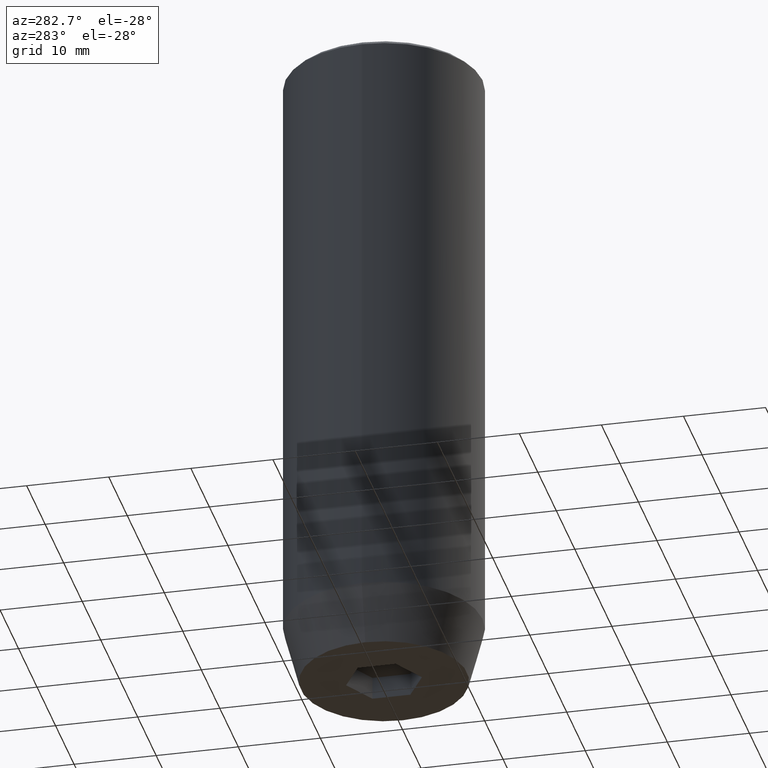
[diagram: clean part render]
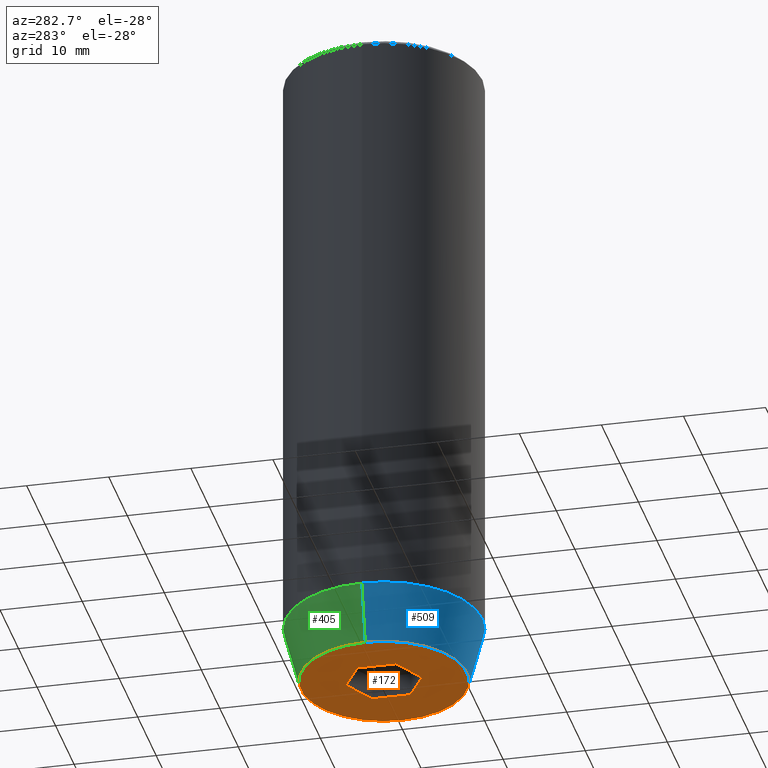
[diagram: same view with three faces highlighted in distinct colors, each labeled with its STEP entity id]
A machine part, auxiliary view with three faces highlighted in distinct colors.
Their STEP definitions:

[orange] entity #172 — the highlighted planar face has unit normal (0, 0, -1).
#21 = VECTOR ( 'NONE', #281, 1000.000000000000114 ) ;
#40 = FACE_BOUND ( 'NONE', #351, .T. ) ;
#43 = LINE ( 'NONE', #504, #420 ) ;
#47 = ORIENTED_EDGE ( 'NONE', *, *, #372, .F. ) ;
#76 = VERTEX_POINT ( 'NONE', #443 ) ;
#86 = LINE ( 'NONE', #322, #343 ) ;
#91 = EDGE_CURVE ( 'NONE', #428, #76, #576, .T. ) ;
#99 = LINE ( 'NONE', #565, #21 ) ;
#121 = EDGE_CURVE ( 'NONE', #366, #153, #361, .T. ) ;
#122 = ORIENTED_EDGE ( 'NONE', *, *, #520, .F. ) ;
#123 = DIRECTION ( 'NONE',  ( 1.000000000000000000, 0.000000000000000000, 0.000000000000000000 ) ) ;
#128 = VECTOR ( 'NONE', #400, 1000.000000000000000 ) ;
#146 = VECTOR ( 'NONE', #391, 1000.000000000000114 ) ;
#153 = VERTEX_POINT ( 'NONE', #572 ) ;
#164 = CARTESIAN_POINT ( 'NONE',  ( 0.000000000000000000, 0.000000000000000000, -80.00000000000001421 ) ) ;
#172 = ADVANCED_FACE ( 'NONE', ( #40, #220 ), #338, .T. ) ;
#175 = DIRECTION ( 'NONE',  ( 0.8660254037844385966, -0.5000000000000001110, 0.000000000000000000 ) ) ;
#177 = DIRECTION ( 'NONE',  ( -0.000000000000000000, -0.000000000000000000, 1.000000000000000000 ) ) ;
#178 = ORIENTED_EDGE ( 'NONE', *, *, #121, .F. ) ;
#180 = DIRECTION ( 'NONE',  ( 0.000000000000000000, 1.000000000000000000, 0.000000000000000000 ) ) ;
#198 = DIRECTION ( 'NONE',  ( 0.000000000000000000, 0.000000000000000000, -1.000000000000000000 ) ) ;
#217 = CIRCLE ( 'NONE', #523, 10.12435565298213902 ) ;
#219 = LINE ( 'NONE', #298, #414 ) ;
#220 = FACE_OUTER_BOUND ( 'NONE', #307, .T. ) ;
#243 = CIRCLE ( 'NONE', #262, 10.12435565298213902 ) ;
#252 = CARTESIAN_POINT ( 'NONE',  ( 4.000000000000000000, 0.000000000000000000, -80.00000000000001421 ) ) ;
#262 = AXIS2_PLACEMENT_3D ( 'NONE', #164, #586, #123 ) ;
#265 = CARTESIAN_POINT ( 'NONE',  ( 0.000000000000000000, 0.000000000000000000, -80.00000000000001421 ) ) ;
#275 = EDGE_CURVE ( 'NONE', #76, #366, #99, .T. ) ;
#277 = CARTESIAN_POINT ( 'NONE',  ( -10.12435565298213902, 1.354726066681111444E-15, -80.00000000000001421 ) ) ;
#281 = DIRECTION ( 'NONE',  ( -0.8660254037844384856, -0.5000000000000002220, 0.000000000000000000 ) ) ;
#298 = CARTESIAN_POINT ( 'NONE',  ( 2.000000000000000444, 3.464101615137754386, -80.00000000000001421 ) ) ;
#307 = EDGE_LOOP ( 'NONE', ( #313, #47 ) ) ;
#311 = CARTESIAN_POINT ( 'NONE',  ( 10.12435565298213902, 0.000000000000000000, -80.00000000000001421 ) ) ;
#313 = ORIENTED_EDGE ( 'NONE', *, *, #463, .F. ) ;
#322 = CARTESIAN_POINT ( 'NONE',  ( -4.000000000000000000, 0.000000000000000000, -80.00000000000001421 ) ) ;
#327 = CARTESIAN_POINT ( 'NONE',  ( 0.000000000000000000, 10.12435565298213902, -80.00000000000001421 ) ) ;
#329 = EDGE_CURVE ( 'NONE', #493, #428, #219, .T. ) ;
#338 = PLANE ( 'NONE',  #404 ) ;
#343 = VECTOR ( 'NONE', #180, 1000.000000000000000 ) ;
#351 = EDGE_LOOP ( 'NONE', ( #454, #122, #178, #505, #490, #546 ) ) ;
#361 = LINE ( 'NONE', #488, #146 ) ;
#366 = VERTEX_POINT ( 'NONE', #538 ) ;
#372 = EDGE_CURVE ( 'NONE', #481, #585, #243, .T. ) ;
#390 = DIRECTION ( 'NONE',  ( -1.000000000000000000, 0.000000000000000000, -0.000000000000000000 ) ) ;
#391 = DIRECTION ( 'NONE',  ( -0.8660254037844384856, 0.5000000000000002220, 0.000000000000000000 ) ) ;
#400 = DIRECTION ( 'NONE',  ( 0.000000000000000000, -1.000000000000000000, 0.000000000000000000 ) ) ;
#404 = AXIS2_PLACEMENT_3D ( 'NONE', #327, #198, #390 ) ;
#414 = VECTOR ( 'NONE', #175, 1000.000000000000000 ) ;
#420 = VECTOR ( 'NONE', #554, 999.9999999999998863 ) ;
#428 = VERTEX_POINT ( 'NONE', #437 ) ;
#437 = CARTESIAN_POINT ( 'NONE',  ( 4.000000000000000000, 2.309401076758503368, -80.00000000000001421 ) ) ;
#443 = CARTESIAN_POINT ( 'NONE',  ( 4.000000000000000000, -2.309401076758502480, -80.00000000000001421 ) ) ;
#445 = CARTESIAN_POINT ( 'NONE',  ( -4.000000000000000000, 2.309401076758503368, -80.00000000000001421 ) ) ;
#450 = VERTEX_POINT ( 'NONE', #445 ) ;
#454 = ORIENTED_EDGE ( 'NONE', *, *, #536, .F. ) ;
#463 = EDGE_CURVE ( 'NONE', #585, #481, #217, .T. ) ;
#464 = CARTESIAN_POINT ( 'NONE',  ( 0.000000000000000000, 4.618802153517004960, -80.00000000000001421 ) ) ;
#481 = VERTEX_POINT ( 'NONE', #277 ) ;
#488 = CARTESIAN_POINT ( 'NONE',  ( -2.000000000000000888, -3.464101615137754386, -80.00000000000001421 ) ) ;
#490 = ORIENTED_EDGE ( 'NONE', *, *, #91, .F. ) ;
#493 = VERTEX_POINT ( 'NONE', #464 ) ;
#504 = CARTESIAN_POINT ( 'NONE',  ( -2.000000000000000000, 3.464101615137754830, -80.00000000000001421 ) ) ;
#505 = ORIENTED_EDGE ( 'NONE', *, *, #275, .F. ) ;
#507 = DIRECTION ( 'NONE',  ( 1.000000000000000000, 0.000000000000000000, 0.000000000000000000 ) ) ;
#520 = EDGE_CURVE ( 'NONE', #153, #450, #86, .T. ) ;
#523 = AXIS2_PLACEMENT_3D ( 'NONE', #265, #177, #507 ) ;
#536 = EDGE_CURVE ( 'NONE', #450, #493, #43, .T. ) ;
#538 = CARTESIAN_POINT ( 'NONE',  ( 4.336808689942017736E-16, -4.618802153517006737, -80.00000000000001421 ) ) ;
#546 = ORIENTED_EDGE ( 'NONE', *, *, #329, .F. ) ;
#554 = DIRECTION ( 'NONE',  ( 0.8660254037844387076, 0.5000000000000001110, 0.000000000000000000 ) ) ;
#565 = CARTESIAN_POINT ( 'NONE',  ( 2.000000000000000888, -3.464101615137754386, -80.00000000000001421 ) ) ;
#572 = CARTESIAN_POINT ( 'NONE',  ( -4.000000000000000000, -2.309401076758503368, -80.00000000000001421 ) ) ;
#576 = LINE ( 'NONE', #252, #128 ) ;
#585 = VERTEX_POINT ( 'NONE', #311 ) ;
#586 = DIRECTION ( 'NONE',  ( -0.000000000000000000, -0.000000000000000000, 1.000000000000000000 ) ) ;

[blue] entity #509 — the highlighted conical surface has half-angle 15 deg.
#4 = FACE_OUTER_BOUND ( 'NONE', #197, .T. ) ;
#6 = DIRECTION ( 'NONE',  ( 1.000000000000000000, 0.000000000000000000, 0.000000000000000000 ) ) ;
#9 = DIRECTION ( 'NONE',  ( -0.000000000000000000, -0.000000000000000000, 1.000000000000000000 ) ) ;
#32 = LINE ( 'NONE', #392, #205 ) ;
#49 = CARTESIAN_POINT ( 'NONE',  ( 0.000000000000000000, 0.000000000000000000, -73.00000000000001421 ) ) ;
#96 = DIRECTION ( 'NONE',  ( 1.000000000000000000, 0.000000000000000000, 0.000000000000000000 ) ) ;
#123 = DIRECTION ( 'NONE',  ( 1.000000000000000000, 0.000000000000000000, 0.000000000000000000 ) ) ;
#134 = CARTESIAN_POINT ( 'NONE',  ( 12.00000000000000000, 0.000000000000000000, -73.00000000000001421 ) ) ;
#164 = CARTESIAN_POINT ( 'NONE',  ( 0.000000000000000000, 0.000000000000000000, -80.00000000000001421 ) ) ;
#197 = EDGE_LOOP ( 'NONE', ( #244, #223, #305, #371 ) ) ;
#201 = CARTESIAN_POINT ( 'NONE',  ( -12.00000000000000000, 1.469576158976823947E-15, -73.00000000000001421 ) ) ;
#204 = DIRECTION ( 'NONE',  ( 0.2588190451025209060, 0.000000000000000000, 0.9659258262890682012 ) ) ;
#205 = VECTOR ( 'NONE', #399, 1000.000000000000000 ) ;
#223 = ORIENTED_EDGE ( 'NONE', *, *, #372, .T. ) ;
#243 = CIRCLE ( 'NONE', #262, 10.12435565298213902 ) ;
#244 = ORIENTED_EDGE ( 'NONE', *, *, #370, .F. ) ;
#262 = AXIS2_PLACEMENT_3D ( 'NONE', #164, #586, #123 ) ;
#277 = CARTESIAN_POINT ( 'NONE',  ( -10.12435565298213902, 1.354726066681111444E-15, -80.00000000000001421 ) ) ;
#286 = VERTEX_POINT ( 'NONE', #201 ) ;
#305 = ORIENTED_EDGE ( 'NONE', *, *, #438, .T. ) ;
#311 = CARTESIAN_POINT ( 'NONE',  ( 10.12435565298213902, 0.000000000000000000, -80.00000000000001421 ) ) ;
#368 = AXIS2_PLACEMENT_3D ( 'NONE', #49, #415, #96 ) ;
#370 = EDGE_CURVE ( 'NONE', #481, #286, #32, .T. ) ;
#371 = ORIENTED_EDGE ( 'NONE', *, *, #562, .F. ) ;
#372 = EDGE_CURVE ( 'NONE', #481, #585, #243, .T. ) ;
#392 = CARTESIAN_POINT ( 'NONE',  ( -12.00000000000000000, 1.469576158976823947E-15, -73.00000000000001421 ) ) ;
#399 = DIRECTION ( 'NONE',  ( -0.2588190451025209060, 3.169619151431766790E-17, 0.9659258262890682012 ) ) ;
#415 = DIRECTION ( 'NONE',  ( -0.000000000000000000, -0.000000000000000000, 1.000000000000000000 ) ) ;
#438 = EDGE_CURVE ( 'NONE', #585, #497, #484, .T. ) ;
#444 = CARTESIAN_POINT ( 'NONE',  ( 12.00000000000000000, 0.000000000000000000, -73.00000000000001421 ) ) ;
#479 = CIRCLE ( 'NONE', #368, 12.00000000000000000 ) ;
#481 = VERTEX_POINT ( 'NONE', #277 ) ;
#484 = LINE ( 'NONE', #444, #582 ) ;
#497 = VERTEX_POINT ( 'NONE', #134 ) ;
#509 = ADVANCED_FACE ( 'NONE', ( #4 ), #573, .T. ) ;
#550 = CARTESIAN_POINT ( 'NONE',  ( 0.000000000000000000, 0.000000000000000000, -73.00000000000001421 ) ) ;
#562 = EDGE_CURVE ( 'NONE', #286, #497, #479, .T. ) ;
#564 = AXIS2_PLACEMENT_3D ( 'NONE', #550, #9, #6 ) ;
#573 = CONICAL_SURFACE ( 'NONE', #564, 12.00000000000000000, 0.2617993877991495744 ) ;
#582 = VECTOR ( 'NONE', #204, 1000.000000000000000 ) ;
#585 = VERTEX_POINT ( 'NONE', #311 ) ;
#586 = DIRECTION ( 'NONE',  ( -0.000000000000000000, -0.000000000000000000, 1.000000000000000000 ) ) ;

[green] entity #405 — the highlighted conical surface has half-angle 15 deg.
#23 = ORIENTED_EDGE ( 'NONE', *, *, #370, .T. ) ;
#32 = LINE ( 'NONE', #392, #205 ) ;
#70 = DIRECTION ( 'NONE',  ( -0.000000000000000000, -0.000000000000000000, 1.000000000000000000 ) ) ;
#126 = DIRECTION ( 'NONE',  ( -0.000000000000000000, -0.000000000000000000, 1.000000000000000000 ) ) ;
#130 = AXIS2_PLACEMENT_3D ( 'NONE', #136, #126, #318 ) ;
#134 = CARTESIAN_POINT ( 'NONE',  ( 12.00000000000000000, 0.000000000000000000, -73.00000000000001421 ) ) ;
#136 = CARTESIAN_POINT ( 'NONE',  ( 0.000000000000000000, 0.000000000000000000, -73.00000000000001421 ) ) ;
#166 = FACE_OUTER_BOUND ( 'NONE', #373, .T. ) ;
#177 = DIRECTION ( 'NONE',  ( -0.000000000000000000, -0.000000000000000000, 1.000000000000000000 ) ) ;
#187 = CIRCLE ( 'NONE', #130, 12.00000000000000000 ) ;
#201 = CARTESIAN_POINT ( 'NONE',  ( -12.00000000000000000, 1.469576158976823947E-15, -73.00000000000001421 ) ) ;
#204 = DIRECTION ( 'NONE',  ( 0.2588190451025209060, 0.000000000000000000, 0.9659258262890682012 ) ) ;
#205 = VECTOR ( 'NONE', #399, 1000.000000000000000 ) ;
#217 = CIRCLE ( 'NONE', #523, 10.12435565298213902 ) ;
#265 = CARTESIAN_POINT ( 'NONE',  ( 0.000000000000000000, 0.000000000000000000, -80.00000000000001421 ) ) ;
#277 = CARTESIAN_POINT ( 'NONE',  ( -10.12435565298213902, 1.354726066681111444E-15, -80.00000000000001421 ) ) ;
#286 = VERTEX_POINT ( 'NONE', #201 ) ;
#306 = CARTESIAN_POINT ( 'NONE',  ( 0.000000000000000000, 0.000000000000000000, -73.00000000000001421 ) ) ;
#311 = CARTESIAN_POINT ( 'NONE',  ( 10.12435565298213902, 0.000000000000000000, -80.00000000000001421 ) ) ;
#318 = DIRECTION ( 'NONE',  ( 1.000000000000000000, 0.000000000000000000, 0.000000000000000000 ) ) ;
#370 = EDGE_CURVE ( 'NONE', #481, #286, #32, .T. ) ;
#373 = EDGE_LOOP ( 'NONE', ( #485, #23, #382, #516 ) ) ;
#382 = ORIENTED_EDGE ( 'NONE', *, *, #552, .F. ) ;
#392 = CARTESIAN_POINT ( 'NONE',  ( -12.00000000000000000, 1.469576158976823947E-15, -73.00000000000001421 ) ) ;
#399 = DIRECTION ( 'NONE',  ( -0.2588190451025209060, 3.169619151431766790E-17, 0.9659258262890682012 ) ) ;
#405 = ADVANCED_FACE ( 'NONE', ( #166 ), #496, .T. ) ;
#438 = EDGE_CURVE ( 'NONE', #585, #497, #484, .T. ) ;
#442 = AXIS2_PLACEMENT_3D ( 'NONE', #306, #70, #574 ) ;
#444 = CARTESIAN_POINT ( 'NONE',  ( 12.00000000000000000, 0.000000000000000000, -73.00000000000001421 ) ) ;
#463 = EDGE_CURVE ( 'NONE', #585, #481, #217, .T. ) ;
#481 = VERTEX_POINT ( 'NONE', #277 ) ;
#484 = LINE ( 'NONE', #444, #582 ) ;
#485 = ORIENTED_EDGE ( 'NONE', *, *, #463, .T. ) ;
#496 = CONICAL_SURFACE ( 'NONE', #442, 12.00000000000000000, 0.2617993877991495744 ) ;
#497 = VERTEX_POINT ( 'NONE', #134 ) ;
#507 = DIRECTION ( 'NONE',  ( 1.000000000000000000, 0.000000000000000000, 0.000000000000000000 ) ) ;
#516 = ORIENTED_EDGE ( 'NONE', *, *, #438, .F. ) ;
#523 = AXIS2_PLACEMENT_3D ( 'NONE', #265, #177, #507 ) ;
#552 = EDGE_CURVE ( 'NONE', #497, #286, #187, .T. ) ;
#574 = DIRECTION ( 'NONE',  ( 1.000000000000000000, 0.000000000000000000, 0.000000000000000000 ) ) ;
#582 = VECTOR ( 'NONE', #204, 1000.000000000000000 ) ;
#585 = VERTEX_POINT ( 'NONE', #311 ) ;